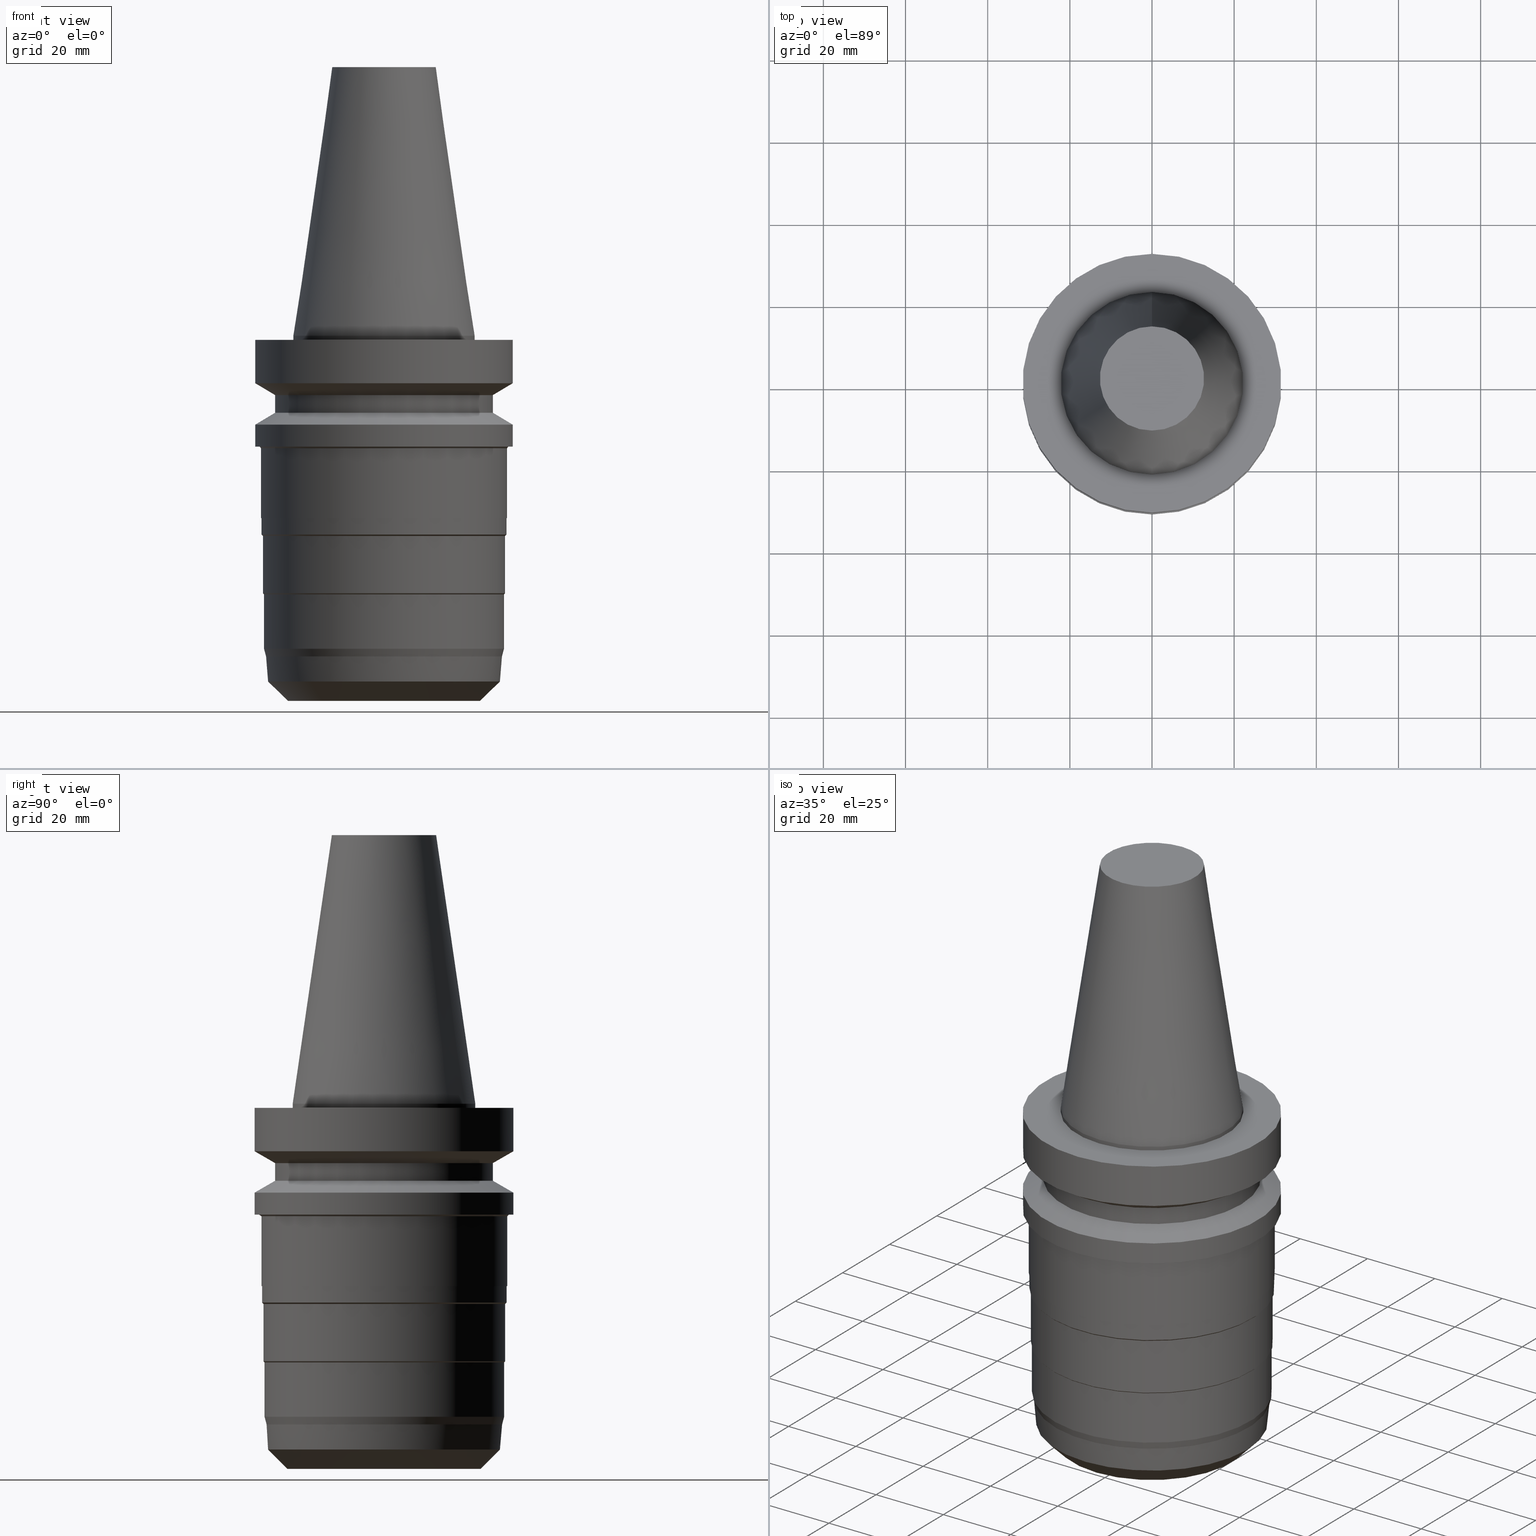
[diagram: canonical four-view strip — front | top / right | iso, engineering-drawing reading convention]
A machine part, canonical four-view strip (front | top / right | iso — engineering-drawing reading convention). The complete STEP part file that produces these views, byte-faithful:
ISO-10303-21;
HEADER;
FILE_DESCRIPTION((''),'1');
FILE_NAME('V:/90_\X2\53D65F9730C730FC30BF\X0\/00_\X2\6DE18DEF30C730FC30BF\X0\/ALL/BBT-BKUS\X2\FF76FF80FF9BFF78FF9E752852A05DE556F3\X0\201801/BBT40-HMC-S/BBT40-HMC1.000S-3.5.stp','2018-02-07T04:10:37',(''),(''),'Spatial Interop R21 SP3','Kubotek KeyCreator 2011 V10.0.2 (22737)',' ');
FILE_SCHEMA(('automotive_design'));
ENDSEC;
DATA;
#1=MECHANICAL_DESIGN_GEOMETRIC_PRESENTATION_REPRESENTATION(' ',(#10,#11,#12,#13,#14,#15,#16,#17,#18,#19,#20,#21,#22,#23,#24,#25,#26,#27,#28,#29,#30,#31,#32,#33,#34,#35,#36,#37,#38,#39,#40,#41,#42,#43,#44,#45,#46,#47,#48,#49,#50,#51,#52,#53),#6);
#2=PRODUCT_DEFINITION_CONTEXT('',#54,'design');
#3=APPLICATION_PROTOCOL_DEFINITION('INTERNATIONAL STANDARD','automotive_design',1994,#54);
#4=PRODUCT_CATEGORY_RELATIONSHIP('NONE','NONE',#55,#56);
#5=SHAPE_DEFINITION_REPRESENTATION(#57,#58);
#6= (GEOMETRIC_REPRESENTATION_CONTEXT(3)GLOBAL_UNCERTAINTY_ASSIGNED_CONTEXT((#61))GLOBAL_UNIT_ASSIGNED_CONTEXT((#63,#64,#65))REPRESENTATION_CONTEXT('NONE','WORKSPACE'));
#10=STYLED_ITEM('',(#67,#68),#69);
#11=STYLED_ITEM('',(#70,#71),#72);
#12=STYLED_ITEM('',(#73),#74);
#13=STYLED_ITEM('',(#75,#76),#77);
#14=STYLED_ITEM('',(#78),#79);
#15=STYLED_ITEM('',(#80,#81),#82);
#16=STYLED_ITEM('',(#83),#84);
#17=STYLED_ITEM('',(#85,#86),#87);
#18=STYLED_ITEM('',(#88),#89);
#19=STYLED_ITEM('',(#90,#91),#92);
#20=STYLED_ITEM('',(#93,#94),#95);
#21=STYLED_ITEM('',(#96,#97),#98);
#22=STYLED_ITEM('',(#99,#100),#101);
#23=STYLED_ITEM('',(#102,#103),#104);
#24=STYLED_ITEM('',(#105),#106);
#25=STYLED_ITEM('',(#107),#108);
#26=STYLED_ITEM('',(#109),#110);
#27=STYLED_ITEM('',(#111,#112),#113);
#28=STYLED_ITEM('',(#114,#115),#116);
#29=STYLED_ITEM('',(#117,#118),#119);
#30=STYLED_ITEM('',(#120),#121);
#31=STYLED_ITEM('',(#122),#123);
#32=STYLED_ITEM('',(#124,#125),#126);
#33=STYLED_ITEM('',(#127,#128),#129);
#34=STYLED_ITEM('',(#130),#131);
#35=STYLED_ITEM('',(#132),#133);
#36=STYLED_ITEM('',(#134),#135);
#37=STYLED_ITEM('',(#136,#137),#138);
#38=STYLED_ITEM('',(#139,#140),#141);
#39=STYLED_ITEM('',(#142),#143);
#40=STYLED_ITEM('',(#144),#145);
#41=STYLED_ITEM('',(#146,#147),#148);
#42=STYLED_ITEM('',(#149),#150);
#43=STYLED_ITEM('',(#151),#152);
#44=STYLED_ITEM('',(#153),#154);
#45=STYLED_ITEM('',(#155),#156);
#46=STYLED_ITEM('',(#157,#158),#159);
#47=STYLED_ITEM('',(#160),#161);
#48=STYLED_ITEM('',(#162),#163);
#49=STYLED_ITEM('',(#164,#165),#166);
#50=STYLED_ITEM('',(#167,#168),#169);
#51=STYLED_ITEM('',(#170,#171),#172);
#52=STYLED_ITEM('',(#173),#174);
#53=STYLED_ITEM('',(#175,#176),#177);
#54=APPLICATION_CONTEXT(' ');
#55=PRODUCT_CATEGORY('part','NONE');
#56=PRODUCT_RELATED_PRODUCT_CATEGORY('detail',' ',(#178));
#57=PRODUCT_DEFINITION_SHAPE('NONE','NONE',#179);
#58=ADVANCED_BREP_SHAPE_REPRESENTATION('Unnamed[1]',(#119,#180),#6);
#61=UNCERTAINTY_MEASURE_WITH_UNIT(LENGTH_MEASURE(1.0E-006),#63,'','');
#63= (CONVERSION_BASED_UNIT('MILLIMETRE',#183)LENGTH_UNIT()NAMED_UNIT(#186));
#64= (NAMED_UNIT(#188)PLANE_ANGLE_UNIT()SI_UNIT($,.RADIAN.));
#65= (NAMED_UNIT(#188)SOLID_ANGLE_UNIT()SI_UNIT($,.STERADIAN.));
#67=PRESENTATION_STYLE_ASSIGNMENT((#194));
#68=PRESENTATION_STYLE_ASSIGNMENT((#195));
#69=ADVANCED_FACE('Unnamed[1]',(#196,#197),#198,.T.);
#70=PRESENTATION_STYLE_ASSIGNMENT((#199));
#71=PRESENTATION_STYLE_ASSIGNMENT((#200));
#72=ADVANCED_FACE('Unnamed[1]',(#201,#202),#203,.T.);
#73=PRESENTATION_STYLE_ASSIGNMENT((#204));
#74=EDGE_CURVE('Unnamed[1]',#205,#205,#206,.T.);
#75=PRESENTATION_STYLE_ASSIGNMENT((#207));
#76=PRESENTATION_STYLE_ASSIGNMENT((#208));
#77=ADVANCED_FACE('Unnamed[1]',(#209,#210),#211,.T.);
#78=PRESENTATION_STYLE_ASSIGNMENT((#212));
#79=EDGE_CURVE('Unnamed[1]',#213,#213,#214,.T.);
#80=PRESENTATION_STYLE_ASSIGNMENT((#215));
#81=PRESENTATION_STYLE_ASSIGNMENT((#216));
#82=ADVANCED_FACE('Unnamed[1]',(#217,#218),#219,.T.);
#83=PRESENTATION_STYLE_ASSIGNMENT((#220));
#84=EDGE_CURVE('Unnamed[1]',#221,#221,#222,.T.);
#85=PRESENTATION_STYLE_ASSIGNMENT((#223));
#86=PRESENTATION_STYLE_ASSIGNMENT((#224));
#87=ADVANCED_FACE('Unnamed[1]',(#225,#226),#227,.T.);
#88=PRESENTATION_STYLE_ASSIGNMENT((#228));
#89=EDGE_CURVE('Unnamed[1]',#229,#229,#230,.T.);
#90=PRESENTATION_STYLE_ASSIGNMENT((#231));
#91=PRESENTATION_STYLE_ASSIGNMENT((#232));
#92=ADVANCED_FACE('Unnamed[1]',(#233,#234),#235,.T.);
#93=PRESENTATION_STYLE_ASSIGNMENT((#236));
#94=PRESENTATION_STYLE_ASSIGNMENT((#237));
#95=ADVANCED_FACE('Unnamed[1]',(#238,#239),#240,.T.);
#96=PRESENTATION_STYLE_ASSIGNMENT((#241));
#97=PRESENTATION_STYLE_ASSIGNMENT((#242));
#98=ADVANCED_FACE('Unnamed[1]',(#243,#244),#245,.T.);
#99=PRESENTATION_STYLE_ASSIGNMENT((#246));
#100=PRESENTATION_STYLE_ASSIGNMENT((#247));
#101=ADVANCED_FACE('Unnamed[1]',(#248,#249),#250,.T.);
#102=PRESENTATION_STYLE_ASSIGNMENT((#251));
#103=PRESENTATION_STYLE_ASSIGNMENT((#252));
#104=ADVANCED_FACE('Unnamed[1]',(#253),#254,.T.);
#105=PRESENTATION_STYLE_ASSIGNMENT((#255));
#106=EDGE_CURVE('Unnamed[1]',#256,#256,#257,.T.);
#107=PRESENTATION_STYLE_ASSIGNMENT((#258));
#108=EDGE_CURVE('Unnamed[1]',#259,#259,#260,.T.);
#109=PRESENTATION_STYLE_ASSIGNMENT((#261));
#110=EDGE_CURVE('Unnamed[1]',#262,#262,#263,.T.);
#111=PRESENTATION_STYLE_ASSIGNMENT((#264));
#112=PRESENTATION_STYLE_ASSIGNMENT((#265));
#113=ADVANCED_FACE('Unnamed[1]',(#266,#267),#268,.T.);
#114=PRESENTATION_STYLE_ASSIGNMENT((#269));
#115=PRESENTATION_STYLE_ASSIGNMENT((#270));
#116=ADVANCED_FACE('Unnamed[1]',(#271,#272),#273,.T.);
#117=PRESENTATION_STYLE_ASSIGNMENT((#274));
#118=PRESENTATION_STYLE_ASSIGNMENT((#275));
#119=MANIFOLD_SOLID_BREP('Unnamed[1]',#276);
#120=PRESENTATION_STYLE_ASSIGNMENT((#277));
#121=EDGE_CURVE('Unnamed[1]',#278,#278,#279,.T.);
#122=PRESENTATION_STYLE_ASSIGNMENT((#280));
#123=EDGE_CURVE('Unnamed[1]',#281,#281,#282,.T.);
#124=PRESENTATION_STYLE_ASSIGNMENT((#283));
#125=PRESENTATION_STYLE_ASSIGNMENT((#284));
#126=ADVANCED_FACE('Unnamed[1]',(#285,#286),#287,.T.);
#127=PRESENTATION_STYLE_ASSIGNMENT((#288));
#128=PRESENTATION_STYLE_ASSIGNMENT((#289));
#129=ADVANCED_FACE('Unnamed[1]',(#290,#291),#292,.T.);
#130=PRESENTATION_STYLE_ASSIGNMENT((#293));
#131=EDGE_CURVE('Unnamed[1]',#294,#294,#295,.T.);
#132=PRESENTATION_STYLE_ASSIGNMENT((#296));
#133=EDGE_CURVE('Unnamed[1]',#297,#297,#298,.T.);
#134=PRESENTATION_STYLE_ASSIGNMENT((#299));
#135=EDGE_CURVE('Unnamed[1]',#300,#300,#301,.T.);
#136=PRESENTATION_STYLE_ASSIGNMENT((#302));
#137=PRESENTATION_STYLE_ASSIGNMENT((#303));
#138=ADVANCED_FACE('Unnamed[1]',(#304,#305),#306,.T.);
#139=PRESENTATION_STYLE_ASSIGNMENT((#307));
#140=PRESENTATION_STYLE_ASSIGNMENT((#308));
#141=ADVANCED_FACE('Unnamed[1]',(#309,#310),#311,.T.);
#142=PRESENTATION_STYLE_ASSIGNMENT((#312));
#143=EDGE_CURVE('Unnamed[1]',#313,#313,#314,.T.);
#144=PRESENTATION_STYLE_ASSIGNMENT((#315));
#145=EDGE_CURVE('Unnamed[1]',#316,#316,#317,.T.);
#146=PRESENTATION_STYLE_ASSIGNMENT((#318));
#147=PRESENTATION_STYLE_ASSIGNMENT((#319));
#148=ADVANCED_FACE('Unnamed[1]',(#320),#321,.T.);
#149=PRESENTATION_STYLE_ASSIGNMENT((#322));
#150=EDGE_CURVE('Unnamed[1]',#323,#323,#324,.T.);
#151=PRESENTATION_STYLE_ASSIGNMENT((#325));
#152=EDGE_CURVE('Unnamed[1]',#326,#326,#327,.T.);
#153=PRESENTATION_STYLE_ASSIGNMENT((#328));
#154=EDGE_CURVE('Unnamed[1]',#329,#329,#330,.T.);
#155=PRESENTATION_STYLE_ASSIGNMENT((#331));
#156=EDGE_CURVE('Unnamed[1]',#332,#332,#333,.T.);
#157=PRESENTATION_STYLE_ASSIGNMENT((#334));
#158=PRESENTATION_STYLE_ASSIGNMENT((#335));
#159=ADVANCED_FACE('Unnamed[1]',(#336,#337),#338,.T.);
#160=PRESENTATION_STYLE_ASSIGNMENT((#339));
#161=EDGE_CURVE('Unnamed[1]',#340,#340,#341,.T.);
#162=PRESENTATION_STYLE_ASSIGNMENT((#342));
#163=EDGE_CURVE('Unnamed[1]',#343,#343,#344,.T.);
#164=PRESENTATION_STYLE_ASSIGNMENT((#345));
#165=PRESENTATION_STYLE_ASSIGNMENT((#346));
#166=ADVANCED_FACE('Unnamed[1]',(#347,#348),#349,.T.);
#167=PRESENTATION_STYLE_ASSIGNMENT((#350));
#168=PRESENTATION_STYLE_ASSIGNMENT((#351));
#169=ADVANCED_FACE('Unnamed[1]',(#352,#353),#354,.T.);
#170=PRESENTATION_STYLE_ASSIGNMENT((#355));
#171=PRESENTATION_STYLE_ASSIGNMENT((#356));
#172=ADVANCED_FACE('Unnamed[1]',(#357,#358),#359,.T.);
#173=PRESENTATION_STYLE_ASSIGNMENT((#360));
#174=EDGE_CURVE('Unnamed[1]',#361,#361,#362,.T.);
#175=PRESENTATION_STYLE_ASSIGNMENT((#363));
#176=PRESENTATION_STYLE_ASSIGNMENT((#364));
#177=ADVANCED_FACE('Unnamed[1]',(#365,#366),#367,.T.);
#178=PRODUCT('Unnamed[1]','Unnamed[1]','PART-Unnamed[1]-DESC',(#368));
#179=PRODUCT_DEFINITION('NONE','NONE',#369,#2);
#180=AXIS2_PLACEMENT_3D('',#370,#371,#372);
#183=LENGTH_MEASURE_WITH_UNIT(LENGTH_MEASURE(1.0),#373);
#186=DIMENSIONAL_EXPONENTS(1.0,0.0,0.0,0.0,0.0,0.0,0.0);
#188=DIMENSIONAL_EXPONENTS(0.0,0.0,0.0,0.0,0.0,0.0,0.0);
#194=SURFACE_STYLE_USAGE(.BOTH.,#374);
#195=CURVE_STYLE('',#375,POSITIVE_LENGTH_MEASURE(1000.0),#376);
#196=FACE_BOUND('',#377,.T.);
#197=FACE_BOUND('',#378,.T.);
#198=CYLINDRICAL_SURFACE('',#379,31.5000000000005);
#199=SURFACE_STYLE_USAGE(.BOTH.,#380);
#200=CURVE_STYLE('',#381,POSITIVE_LENGTH_MEASURE(1000.0),#382);
#201=FACE_BOUND('',#383,.T.);
#202=FACE_OUTER_BOUND('',#384,.T.);
#203=PLANE('',#385);
#204=CURVE_STYLE('',#386,POSITIVE_LENGTH_MEASURE(1000.0),#387);
#205=VERTEX_POINT('',#388);
#206=CIRCLE('',#389,26.4999999999995);
#207=SURFACE_STYLE_USAGE(.BOTH.,#390);
#208=CURVE_STYLE('',#391,POSITIVE_LENGTH_MEASURE(1000.0),#392);
#209=FACE_BOUND('',#393,.T.);
#210=FACE_BOUND('',#394,.T.);
#211=CONICAL_SURFACE('',#395,17.4562500000001,0.144812498238936);
#212=CURVE_STYLE('',#396,POSITIVE_LENGTH_MEASURE(1000.0),#397);
#213=VERTEX_POINT('',#398);
#214=CIRCLE('',#399,31.5000000000007);
#215=SURFACE_STYLE_USAGE(.BOTH.,#400);
#216=CURVE_STYLE('',#401,POSITIVE_LENGTH_MEASURE(1000.0),#402);
#217=FACE_BOUND('',#403,.T.);
#218=FACE_BOUND('',#404,.T.);
#219=CYLINDRICAL_SURFACE('',#405,29.85);
#220=CURVE_STYLE('',#406,POSITIVE_LENGTH_MEASURE(1000.0),#407);
#221=VERTEX_POINT('',#408);
#222=CIRCLE('',#409,30.0000000000004);
#223=SURFACE_STYLE_USAGE(.BOTH.,#410);
#224=CURVE_STYLE('',#411,POSITIVE_LENGTH_MEASURE(1000.0),#412);
#225=FACE_BOUND('',#413,.T.);
#226=FACE_BOUND('',#414,.T.);
#227=CONICAL_SURFACE('',#415,29.0000000000004,1.04719755119651);
#228=CURVE_STYLE('',#416,POSITIVE_LENGTH_MEASURE(1000.0),#417);
#229=VERTEX_POINT('',#418);
#230=CIRCLE('',#419,29.5);
#231=SURFACE_STYLE_USAGE(.BOTH.,#420);
#232=CURVE_STYLE('',#421,POSITIVE_LENGTH_MEASURE(1000.0),#422);
#233=FACE_BOUND('',#423,.T.);
#234=FACE_BOUND('',#424,.T.);
#235=CYLINDRICAL_SURFACE('',#425,31.5);
#236=SURFACE_STYLE_USAGE(.BOTH.,#426);
#237=CURVE_STYLE('',#427,POSITIVE_LENGTH_MEASURE(1000.0),#428);
#238=FACE_BOUND('',#429,.T.);
#239=FACE_BOUND('',#430,.T.);
#240=CONICAL_SURFACE('',#431,30.2,0.785398163397501);
#241=SURFACE_STYLE_USAGE(.BOTH.,#432);
#242=CURVE_STYLE('',#433,POSITIVE_LENGTH_MEASURE(1000.0),#434);
#243=FACE_BOUND('',#435,.T.);
#244=FACE_BOUND('',#436,.T.);
#245=CONICAL_SURFACE('',#437,28.4823132001958,0.0872664632443561);
#246=SURFACE_STYLE_USAGE(.BOTH.,#438);
#247=CURVE_STYLE('',#439,POSITIVE_LENGTH_MEASURE(1000.0),#440);
#248=FACE_BOUND('',#441,.T.);
#249=FACE_BOUND('',#442,.T.);
#250=CONICAL_SURFACE('',#443,25.8573132001958,0.785398163397444);
#251=SURFACE_STYLE_USAGE(.BOTH.,#444);
#252=CURVE_STYLE('',#445,POSITIVE_LENGTH_MEASURE(1000.0),#446);
#253=FACE_OUTER_BOUND('',#447,.T.);
#254=PLANE('',#448);
#255=CURVE_STYLE('',#449,POSITIVE_LENGTH_MEASURE(1000.0),#450);
#256=VERTEX_POINT('',#451);
#257=CIRCLE('',#452,30.4);
#258=CURVE_STYLE('',#453,POSITIVE_LENGTH_MEASURE(1000.0),#454);
#259=VERTEX_POINT('',#455);
#260=CIRCLE('',#456,29.25);
#261=CURVE_STYLE('',#457,POSITIVE_LENGTH_MEASURE(1000.0),#458);
#262=VERTEX_POINT('',#459);
#263=CIRCLE('',#460,22.2250000000001);
#264=SURFACE_STYLE_USAGE(.BOTH.,#461);
#265=CURVE_STYLE('',#462,POSITIVE_LENGTH_MEASURE(1000.0),#463);
#266=FACE_BOUND('',#464,.T.);
#267=FACE_BOUND('',#465,.T.);
#268=CYLINDRICAL_SURFACE('',#466,29.5);
#269=SURFACE_STYLE_USAGE(.BOTH.,#467);
#270=CURVE_STYLE('',#468,POSITIVE_LENGTH_MEASURE(1000.0),#469);
#271=FACE_BOUND('',#470,.T.);
#272=FACE_BOUND('',#471,.T.);
#273=CYLINDRICAL_SURFACE('',#472,26.4999999999997);
#274=SURFACE_STYLE_USAGE(.BOTH.,#473);
#275=CURVE_STYLE('',#474,POSITIVE_LENGTH_MEASURE(1000.0),#475);
#276=CLOSED_SHELL('',(#148,#77,#126,#166,#92,#177,#116,#87,#69,#72,#95,#141,#138,#82,#169,#113,#129,#172,#159,#98,#101,#104));
#277=CURVE_STYLE('',#476,POSITIVE_LENGTH_MEASURE(1000.0),#477);
#278=VERTEX_POINT('',#478);
#279=CIRCLE('',#479,29.9999999999999);
#280=CURVE_STYLE('',#480,POSITIVE_LENGTH_MEASURE(1000.0),#481);
#281=VERTEX_POINT('',#482);
#282=CIRCLE('',#483,26.5);
#283=SURFACE_STYLE_USAGE(.BOTH.,#484);
#284=CURVE_STYLE('',#485,POSITIVE_LENGTH_MEASURE(1000.0),#486);
#285=FACE_BOUND('',#487,.T.);
#286=FACE_BOUND('',#488,.T.);
#287=CYLINDRICAL_SURFACE('',#489,22.2250000000001);
#288=SURFACE_STYLE_USAGE(.BOTH.,#490);
#289=CURVE_STYLE('',#491,POSITIVE_LENGTH_MEASURE(1000.0),#492);
#290=FACE_BOUND('',#493,.T.);
#291=FACE_BOUND('',#494,.T.);
#292=CONICAL_SURFACE('',#495,29.375,0.78539816339742);
#293=CURVE_STYLE('',#496,POSITIVE_LENGTH_MEASURE(1000.0),#497);
#294=VERTEX_POINT('',#498);
#295=CIRCLE('',#499,12.6875000000002);
#296=CURVE_STYLE('',#500,POSITIVE_LENGTH_MEASURE(1000.0),#501);
#297=VERTEX_POINT('',#502);
#298=CIRCLE('',#503,28.75);
#299=CURVE_STYLE('',#504,POSITIVE_LENGTH_MEASURE(1000.0),#505);
#300=VERTEX_POINT('',#506);
#301=CIRCLE('',#507,29.85);
#302=SURFACE_STYLE_USAGE(.BOTH.,#508);
#303=CURVE_STYLE('',#509,POSITIVE_LENGTH_MEASURE(1000.0),#510);
#304=FACE_BOUND('',#511,.T.);
#305=FACE_OUTER_BOUND('',#512,.T.);
#306=PLANE('',#513);
#307=SURFACE_STYLE_USAGE(.BOTH.,#514);
#308=CURVE_STYLE('',#515,POSITIVE_LENGTH_MEASURE(1000.0),#516);
#309=FACE_BOUND('',#517,.T.);
#310=FACE_BOUND('',#518,.T.);
#311=CYLINDRICAL_SURFACE('',#519,30.0000000000001);
#312=CURVE_STYLE('',#520,POSITIVE_LENGTH_MEASURE(1000.0),#521);
#313=VERTEX_POINT('',#522);
#314=CIRCLE('',#523,29.5);
#315=CURVE_STYLE('',#524,POSITIVE_LENGTH_MEASURE(1000.0),#525);
#316=VERTEX_POINT('',#526);
#317=CIRCLE('',#527,28.2146264003915);
#318=SURFACE_STYLE_USAGE(.BOTH.,#528);
#319=CURVE_STYLE('',#529,POSITIVE_LENGTH_MEASURE(1000.0),#530);
#320=FACE_OUTER_BOUND('',#531,.T.);
#321=PLANE('',#532);
#322=CURVE_STYLE('',#533,POSITIVE_LENGTH_MEASURE(1000.0),#534);
#323=VERTEX_POINT('',#535);
#324=CIRCLE('',#536,23.5);
#325=CURVE_STYLE('',#537,POSITIVE_LENGTH_MEASURE(1000.0),#538);
#326=VERTEX_POINT('',#539);
#327=CIRCLE('',#540,29.85);
#328=CURVE_STYLE('',#541,POSITIVE_LENGTH_MEASURE(1000.0),#542);
#329=VERTEX_POINT('',#543);
#330=CIRCLE('',#544,29.25);
#331=CURVE_STYLE('',#545,POSITIVE_LENGTH_MEASURE(1000.0),#546);
#332=VERTEX_POINT('',#547);
#333=CIRCLE('',#548,22.2250000000001);
#334=SURFACE_STYLE_USAGE(.BOTH.,#549);
#335=CURVE_STYLE('',#550,POSITIVE_LENGTH_MEASURE(1000.0),#551);
#336=FACE_BOUND('',#552,.T.);
#337=FACE_BOUND('',#553,.T.);
#338=CONICAL_SURFACE('',#554,29.0,0.261799388306166);
#339=CURVE_STYLE('',#555,POSITIVE_LENGTH_MEASURE(1000.0),#556);
#340=VERTEX_POINT('',#557);
#341=CIRCLE('',#558,31.4999999999997);
#342=CURVE_STYLE('',#559,POSITIVE_LENGTH_MEASURE(1000.0),#560);
#343=VERTEX_POINT('',#561);
#344=CIRCLE('',#562,31.5000000000004);
#345=SURFACE_STYLE_USAGE(.BOTH.,#563);
#346=CURVE_STYLE('',#564,POSITIVE_LENGTH_MEASURE(1000.0),#565);
#347=FACE_OUTER_BOUND('',#566,.T.);
#348=FACE_BOUND('',#567,.T.);
#349=PLANE('',#568);
#350=SURFACE_STYLE_USAGE(.BOTH.,#569);
#351=CURVE_STYLE('',#570,POSITIVE_LENGTH_MEASURE(1000.0),#571);
#352=FACE_BOUND('',#572,.T.);
#353=FACE_BOUND('',#573,.T.);
#354=CONICAL_SURFACE('',#574,29.675,0.785398163397448);
#355=SURFACE_STYLE_USAGE(.BOTH.,#575);
#356=CURVE_STYLE('',#576,POSITIVE_LENGTH_MEASURE(1000.0),#577);
#357=FACE_BOUND('',#578,.T.);
#358=FACE_BOUND('',#579,.T.);
#359=CYLINDRICAL_SURFACE('',#580,29.25);
#360=CURVE_STYLE('',#581,POSITIVE_LENGTH_MEASURE(1000.0),#582);
#361=VERTEX_POINT('',#583);
#362=CIRCLE('',#584,31.5000000000004);
#363=SURFACE_STYLE_USAGE(.BOTH.,#585);
#364=CURVE_STYLE('',#586,POSITIVE_LENGTH_MEASURE(1000.0),#587);
#365=FACE_BOUND('',#588,.T.);
#366=FACE_BOUND('',#589,.T.);
#367=CONICAL_SURFACE('',#590,28.9999999999999,1.04719755119657);
#368=PRODUCT_CONTEXT('',#54,'mechanical');
#369=PRODUCT_DEFINITION_FORMATION_WITH_SPECIFIED_SOURCE(' ','NONE',#178,.NOT_KNOWN.);
#370=CARTESIAN_POINT('',(0.0,0.0,0.0));
#371=DIRECTION('',(0.0,0.0,1.0));
#372=DIRECTION('',(1.0,0.0,0.0));
#373= (NAMED_UNIT(#186)LENGTH_UNIT()SI_UNIT(.MILLI.,.METRE.));
#374=SURFACE_SIDE_STYLE('',(#592));
#375=DRAUGHTING_PRE_DEFINED_CURVE_FONT('continuous');
#376=COLOUR_RGB('',0.0,1.0,0.0);
#377=EDGE_LOOP('',(#593));
#378=EDGE_LOOP('',(#594));
#379=AXIS2_PLACEMENT_3D('',#595,#596,#597);
#380=SURFACE_SIDE_STYLE('',(#598));
#381=DRAUGHTING_PRE_DEFINED_CURVE_FONT('continuous');
#382=COLOUR_RGB('',0.0,1.0,0.0);
#383=EDGE_LOOP('',(#599));
#384=EDGE_LOOP('',(#600));
#385=AXIS2_PLACEMENT_3D('',#601,#602,#603);
#386=DRAUGHTING_PRE_DEFINED_CURVE_FONT('continuous');
#387=COLOUR_RGB('',0.0,1.0,0.0);
#388=CARTESIAN_POINT('',(8.8494551369045E-016,26.4999999999995,-14.4522569986152));
#389=AXIS2_PLACEMENT_3D('',#604,#605,#606);
#390=SURFACE_SIDE_STYLE('',(#607));
#391=DRAUGHTING_PRE_DEFINED_CURVE_FONT('continuous');
#392=COLOUR_RGB('',0.0,1.0,0.0);
#393=EDGE_LOOP('',(#608));
#394=EDGE_LOOP('',(#609));
#395=AXIS2_PLACEMENT_3D('',#610,#611,#612);
#396=DRAUGHTING_PRE_DEFINED_CURVE_FONT('continuous');
#397=COLOUR_RGB('',0.0,1.0,0.0);
#398=CARTESIAN_POINT('',(1.32473071268174E-015,31.5000000000007,-21.6344943473346));
#399=AXIS2_PLACEMENT_3D('',#613,#614,#615);
#400=SURFACE_SIDE_STYLE('',(#616));
#401=DRAUGHTING_PRE_DEFINED_CURVE_FONT('continuous');
#402=COLOUR_RGB('',0.0,1.0,0.0);
#403=EDGE_LOOP('',(#617));
#404=EDGE_LOOP('',(#618));
#405=AXIS2_PLACEMENT_3D('',#619,#620,#621);
#406=DRAUGHTING_PRE_DEFINED_CURVE_FONT('continuous');
#407=COLOUR_RGB('',0.0,1.0,0.0);
#408=CARTESIAN_POINT('',(2.71871589410711E-015,30.0000000000004,-44.3999999999997));
#409=AXIS2_PLACEMENT_3D('',#622,#623,#624);
#410=SURFACE_SIDE_STYLE('',(#625));
#411=DRAUGHTING_PRE_DEFINED_CURVE_FONT('continuous');
#412=COLOUR_RGB('',0.0,1.0,0.0);
#413=EDGE_LOOP('',(#626));
#414=EDGE_LOOP('',(#627));
#415=AXIS2_PLACEMENT_3D('',#628,#629,#630);
#416=DRAUGHTING_PRE_DEFINED_CURVE_FONT('continuous');
#417=COLOUR_RGB('',0.0,1.0,0.0);
#418=CARTESIAN_POINT('',(2.98507657292167E-015,29.5,-48.75));
#419=AXIS2_PLACEMENT_3D('',#631,#632,#633);
#420=SURFACE_SIDE_STYLE('',(#634));
#421=DRAUGHTING_PRE_DEFINED_CURVE_FONT('continuous');
#422=COLOUR_RGB('',0.0,1.0,0.0);
#423=EDGE_LOOP('',(#635));
#424=EDGE_LOOP('',(#636));
#425=AXIS2_PLACEMENT_3D('',#637,#638,#639);
#426=SURFACE_SIDE_STYLE('',(#640));
#427=DRAUGHTING_PRE_DEFINED_CURVE_FONT('continuous');
#428=COLOUR_RGB('',0.0,1.0,0.0);
#429=EDGE_LOOP('',(#641));
#430=EDGE_LOOP('',(#642));
#431=AXIS2_PLACEMENT_3D('',#643,#644,#645);
#432=SURFACE_SIDE_STYLE('',(#646));
#433=DRAUGHTING_PRE_DEFINED_CURVE_FONT('continuous');
#434=COLOUR_RGB('',0.0,1.0,0.0);
#435=EDGE_LOOP('',(#647));
#436=EDGE_LOOP('',(#648));
#437=AXIS2_PLACEMENT_3D('',#649,#650,#651);
#438=SURFACE_SIDE_STYLE('',(#652));
#439=DRAUGHTING_PRE_DEFINED_CURVE_FONT('continuous');
#440=COLOUR_RGB('',0.0,1.0,0.0);
#441=EDGE_LOOP('',(#653));
#442=EDGE_LOOP('',(#654));
#443=AXIS2_PLACEMENT_3D('',#655,#656,#657);
#444=SURFACE_SIDE_STYLE('',(#658));
#445=DRAUGHTING_PRE_DEFINED_CURVE_FONT('continuous');
#446=COLOUR_RGB('',0.0,1.0,0.0);
#447=EDGE_LOOP('',(#659));
#448=AXIS2_PLACEMENT_3D('',#660,#661,#662);
#449=DRAUGHTING_PRE_DEFINED_CURVE_FONT('continuous');
#450=COLOUR_RGB('',0.0,1.0,0.0);
#451=CARTESIAN_POINT('',(1.65327317884891E-015,30.4,-26.9999999999998));
#452=AXIS2_PLACEMENT_3D('',#663,#664,#665);
#453=DRAUGHTING_PRE_DEFINED_CURVE_FONT('continuous');
#454=COLOUR_RGB('',0.0,1.0,0.0);
#455=CARTESIAN_POINT('',(4.66590430475142E-015,29.25,-76.2));
#456=AXIS2_PLACEMENT_3D('',#666,#667,#668);
#457=DRAUGHTING_PRE_DEFINED_CURVE_FONT('continuous');
#458=COLOUR_RGB('',0.0,1.0,0.0);
#459=CARTESIAN_POINT('',(6.12323399573622E-017,22.2250000000001,-0.999999999999912));
#460=AXIS2_PLACEMENT_3D('',#669,#670,#671);
#461=SURFACE_SIDE_STYLE('',(#672));
#462=DRAUGHTING_PRE_DEFINED_CURVE_FONT('continuous');
#463=COLOUR_RGB('',0.0,1.0,0.0);
#464=EDGE_LOOP('',(#673));
#465=EDGE_LOOP('',(#674));
#466=AXIS2_PLACEMENT_3D('',#675,#676,#677);
#467=SURFACE_SIDE_STYLE('',(#678));
#468=DRAUGHTING_PRE_DEFINED_CURVE_FONT('continuous');
#469=COLOUR_RGB('',0.0,1.0,0.0);
#470=EDGE_LOOP('',(#679));
#471=EDGE_LOOP('',(#680));
#472=AXIS2_PLACEMENT_3D('',#681,#682,#683);
#473=SURFACE_SIDE_STYLE('',(#684));
#474=DRAUGHTING_PRE_DEFINED_CURVE_FONT('continuous');
#475=COLOUR_RGB('',0.0,1.0,0.0);
#476=DRAUGHTING_PRE_DEFINED_CURVE_FONT('continuous');
#477=COLOUR_RGB('',0.0,1.0,0.0);
#478=CARTESIAN_POINT('',(1.67776611483187E-015,29.9999999999999,-27.3999999999999));
#479=AXIS2_PLACEMENT_3D('',#685,#686,#687);
#480=DRAUGHTING_PRE_DEFINED_CURVE_FONT('continuous');
#481=COLOUR_RGB('',0.0,1.0,0.0);
#482=CARTESIAN_POINT('',(1.1479681728942E-015,26.5,-18.7477430013855));
#483=AXIS2_PLACEMENT_3D('',#688,#689,#690);
#484=SURFACE_SIDE_STYLE('',(#691));
#485=DRAUGHTING_PRE_DEFINED_CURVE_FONT('continuous');
#486=COLOUR_RGB('',0.0,1.0,0.0);
#487=EDGE_LOOP('',(#692));
#488=EDGE_LOOP('',(#693));
#489=AXIS2_PLACEMENT_3D('',#694,#695,#696);
#490=SURFACE_SIDE_STYLE('',(#697));
#491=DRAUGHTING_PRE_DEFINED_CURVE_FONT('continuous');
#492=COLOUR_RGB('',0.0,1.0,0.0);
#493=EDGE_LOOP('',(#698));
#494=EDGE_LOOP('',(#699));
#495=AXIS2_PLACEMENT_3D('',#700,#701,#702);
#496=DRAUGHTING_PRE_DEFINED_CURVE_FONT('continuous');
#497=COLOUR_RGB('',0.0,1.0,0.0);
#498=CARTESIAN_POINT('',(-4.00459503321185E-015,12.6875000000002,65.4000000000001));
#499=AXIS2_PLACEMENT_3D('',#703,#704,#705);
#500=DRAUGHTING_PRE_DEFINED_CURVE_FONT('continuous');
#501=COLOUR_RGB('',0.0,1.0,0.0);
#502=CARTESIAN_POINT('',(4.7801654064133E-015,28.75,-78.0660254));
#503=AXIS2_PLACEMENT_3D('',#706,#707,#708);
#504=DRAUGHTING_PRE_DEFINED_CURVE_FONT('continuous');
#505=COLOUR_RGB('',0.0,1.0,0.0);
#506=CARTESIAN_POINT('',(2.7187158941071E-015,29.85,-44.3999999999997));
#507=AXIS2_PLACEMENT_3D('',#709,#710,#711);
#508=SURFACE_SIDE_STYLE('',(#712));
#509=DRAUGHTING_PRE_DEFINED_CURVE_FONT('continuous');
#510=COLOUR_RGB('',0.0,1.0,0.0);
#511=EDGE_LOOP('',(#713));
#512=EDGE_LOOP('',(#714));
#513=AXIS2_PLACEMENT_3D('',#715,#716,#717);
#514=SURFACE_SIDE_STYLE('',(#718));
#515=DRAUGHTING_PRE_DEFINED_CURVE_FONT('continuous');
#516=COLOUR_RGB('',0.0,1.0,0.0);
#517=EDGE_LOOP('',(#719));
#518=EDGE_LOOP('',(#720));
#519=AXIS2_PLACEMENT_3D('',#721,#722,#723);
#520=DRAUGHTING_PRE_DEFINED_CURVE_FONT('continuous');
#521=COLOUR_RGB('',0.0,1.0,0.0);
#522=CARTESIAN_POINT('',(3.83926771532695E-015,29.5,-62.7));
#523=AXIS2_PLACEMENT_3D('',#724,#725,#726);
#524=DRAUGHTING_PRE_DEFINED_CURVE_FONT('continuous');
#525=COLOUR_RGB('',0.0,1.0,0.0);
#526=CARTESIAN_POINT('',(5.15486741568923E-015,28.2146264003915,-84.1853735996085));
#527=AXIS2_PLACEMENT_3D('',#727,#728,#729);
#528=SURFACE_SIDE_STYLE('',(#730));
#529=DRAUGHTING_PRE_DEFINED_CURVE_FONT('continuous');
#530=COLOUR_RGB('',0.0,1.0,0.0);
#531=EDGE_LOOP('',(#731));
#532=AXIS2_PLACEMENT_3D('',#732,#733,#734);
#533=DRAUGHTING_PRE_DEFINED_CURVE_FONT('continuous');
#534=COLOUR_RGB('',0.0,1.0,0.0);
#535=CARTESIAN_POINT('',(5.44355502220999E-015,23.5,-88.9));
#536=AXIS2_PLACEMENT_3D('',#735,#736,#737);
#537=DRAUGHTING_PRE_DEFINED_CURVE_FONT('continuous');
#538=COLOUR_RGB('',0.0,1.0,0.0);
#539=CARTESIAN_POINT('',(2.96364525393659E-015,29.85,-48.4));
#540=AXIS2_PLACEMENT_3D('',#738,#739,#740);
#541=DRAUGHTING_PRE_DEFINED_CURVE_FONT('continuous');
#542=COLOUR_RGB('',0.0,1.0,0.0);
#543=CARTESIAN_POINT('',(3.85457580031629E-015,29.25,-62.95));
#544=AXIS2_PLACEMENT_3D('',#741,#742,#743);
#545=DRAUGHTING_PRE_DEFINED_CURVE_FONT('continuous');
#546=COLOUR_RGB('',0.0,1.0,0.0);
#547=CARTESIAN_POINT('',(1.71319921032766E-029,22.2250000000001,-2.8153873565375E-013));
#548=AXIS2_PLACEMENT_3D('',#744,#745,#746);
#549=SURFACE_SIDE_STYLE('',(#747));
#550=DRAUGHTING_PRE_DEFINED_CURVE_FONT('continuous');
#551=COLOUR_RGB('',0.0,1.0,0.0);
#552=EDGE_LOOP('',(#748));
#553=EDGE_LOOP('',(#749));
#554=AXIS2_PLACEMENT_3D('',#750,#751,#752);
#555=DRAUGHTING_PRE_DEFINED_CURVE_FONT('continuous');
#556=COLOUR_RGB('',0.0,1.0,0.0);
#557=CARTESIAN_POINT('',(6.12323399573568E-017,31.4999999999997,-0.999999999999825));
#558=AXIS2_PLACEMENT_3D('',#753,#754,#755);
#559=DRAUGHTING_PRE_DEFINED_CURVE_FONT('continuous');
#560=COLOUR_RGB('',0.0,1.0,0.0);
#561=CARTESIAN_POINT('',(1.65327317884891E-015,31.5000000000004,-26.9999999999998));
#562=AXIS2_PLACEMENT_3D('',#756,#757,#758);
#563=SURFACE_SIDE_STYLE('',(#759));
#564=DRAUGHTING_PRE_DEFINED_CURVE_FONT('continuous');
#565=COLOUR_RGB('',0.0,1.0,0.0);
#566=EDGE_LOOP('',(#760));
#567=EDGE_LOOP('',(#761));
#568=AXIS2_PLACEMENT_3D('',#762,#763,#764);
#569=SURFACE_SIDE_STYLE('',(#765));
#570=DRAUGHTING_PRE_DEFINED_CURVE_FONT('continuous');
#571=COLOUR_RGB('',0.0,1.0,0.0);
#572=EDGE_LOOP('',(#766));
#573=EDGE_LOOP('',(#767));
#574=AXIS2_PLACEMENT_3D('',#768,#769,#770);
#575=SURFACE_SIDE_STYLE('',(#771));
#576=DRAUGHTING_PRE_DEFINED_CURVE_FONT('continuous');
#577=COLOUR_RGB('',0.0,1.0,0.0);
#578=EDGE_LOOP('',(#772));
#579=EDGE_LOOP('',(#773));
#580=AXIS2_PLACEMENT_3D('',#774,#775,#776);
#581=DRAUGHTING_PRE_DEFINED_CURVE_FONT('continuous');
#582=COLOUR_RGB('',0.0,1.0,0.0);
#583=CARTESIAN_POINT('',(7.08182973902924E-016,31.5000000000004,-11.5655056526664));
#584=AXIS2_PLACEMENT_3D('',#777,#778,#779);
#585=SURFACE_SIDE_STYLE('',(#780));
#586=DRAUGHTING_PRE_DEFINED_CURVE_FONT('continuous');
#587=COLOUR_RGB('',0.0,1.0,0.0);
#588=EDGE_LOOP('',(#781));
#589=EDGE_LOOP('',(#782));
#590=AXIS2_PLACEMENT_3D('',#783,#784,#785);
#592=SURFACE_STYLE_FILL_AREA(#786);
#593=ORIENTED_EDGE('',*,*,#163,.F.);
#594=ORIENTED_EDGE('',*,*,#79,.T.);
#595=CARTESIAN_POINT('',(1.48900194576533E-015,2.97800389153066E-015,-24.3172471736672));
#596=DIRECTION('',(6.12323399573677E-017,1.22464679914768E-016,-1.0));
#597=DIRECTION('',(-1.23259516440781E-032,1.0,1.22464679914768E-016));
#598=SURFACE_STYLE_FILL_AREA(#787);
#599=ORIENTED_EDGE('',*,*,#106,.F.);
#600=ORIENTED_EDGE('',*,*,#163,.T.);
#601=CARTESIAN_POINT('',(1.65327317884891E-015,30.9500000000002,-26.9999999999998));
#602=DIRECTION('',(6.12323399573677E-017,9.81168380391312E-015,-1.0));
#603=DIRECTION('',(-6.05619510966175E-031,1.0,9.81168380391312E-015));
#604=CARTESIAN_POINT('',(8.8494551369045E-016,1.7698910273809E-015,-14.4522569986152));
#605=DIRECTION('',(6.12323399573677E-017,1.22464679914706E-016,-1.0));
#606=DIRECTION('',(-1.23259516440786E-032,1.0,1.22464679914706E-016));
#607=SURFACE_STYLE_FILL_AREA(#788);
#608=ORIENTED_EDGE('',*,*,#156,.F.);
#609=ORIENTED_EDGE('',*,*,#131,.T.);
#610=CARTESIAN_POINT('',(-2.00229751660592E-015,-4.00459503321183E-015,32.6999999999999));
#611=DIRECTION('',(6.12323399573677E-017,1.22464679914734E-016,-1.0));
#612=DIRECTION('',(-1.23259516440803E-032,1.0,1.22464679914734E-016));
#613=CARTESIAN_POINT('',(1.32473071268174E-015,2.64946142536349E-015,-21.6344943473346));
#614=DIRECTION('',(6.12323399573677E-017,1.22464679914767E-016,-1.0));
#615=DIRECTION('',(-1.2325951644078E-032,1.0,1.22464679914767E-016));
#616=SURFACE_STYLE_FILL_AREA(#789);
#617=ORIENTED_EDGE('',*,*,#152,.F.);
#618=ORIENTED_EDGE('',*,*,#135,.T.);
#619=CARTESIAN_POINT('',(2.84118057402185E-015,5.6823611480437E-015,-46.3999999999998));
#620=DIRECTION('',(6.12323399573677E-017,1.22464679914685E-016,-1.0));
#621=DIRECTION('',(-1.23259516440807E-032,1.0,1.22464679914685E-016));
#622=CARTESIAN_POINT('',(2.71871589410711E-015,5.43743178821421E-015,-44.3999999999997));
#623=DIRECTION('',(6.12323399573677E-017,1.22464679914692E-016,-1.0));
#624=DIRECTION('',(-1.23259516440782E-032,1.0,1.22464679914692E-016));
#625=SURFACE_STYLE_FILL_AREA(#790);
#626=ORIENTED_EDGE('',*,*,#79,.F.);
#627=ORIENTED_EDGE('',*,*,#123,.T.);
#628=CARTESIAN_POINT('',(1.23634944278797E-015,2.47269888557594E-015,-20.1911186743601));
#629=DIRECTION('',(6.12323399573676E-017,1.2246467991471E-016,-1.0));
#630=DIRECTION('',(-1.23259516440782E-032,1.0,1.2246467991471E-016));
#631=CARTESIAN_POINT('',(2.98507657292167E-015,5.97015314584335E-015,-48.75));
#632=DIRECTION('',(6.12323399573677E-017,1.22464679914757E-016,-1.0));
#633=DIRECTION('',(-1.23259516440783E-032,1.0,1.22464679914757E-016));
#634=SURFACE_STYLE_FILL_AREA(#791);
#635=ORIENTED_EDGE('',*,*,#174,.F.);
#636=ORIENTED_EDGE('',*,*,#161,.T.);
#637=CARTESIAN_POINT('',(3.84707656930141E-016,7.69415313860281E-016,-6.28275282633309));
#638=DIRECTION('',(6.12323399573676E-017,1.2246467991477E-016,-1.0));
#639=DIRECTION('',(-1.23259516440783E-032,1.0,1.2246467991477E-016));
#640=SURFACE_STYLE_FILL_AREA(#792);
#641=ORIENTED_EDGE('',*,*,#121,.F.);
#642=ORIENTED_EDGE('',*,*,#106,.T.);
#643=CARTESIAN_POINT('',(1.66551964684039E-015,3.33103929368078E-015,-27.1999999999998));
#644=DIRECTION('',(-6.12323399573677E-017,-1.22464679914775E-016,1.0));
#645=DIRECTION('',(-1.23259516440771E-032,1.0,1.22464679914775E-016));
#646=SURFACE_STYLE_FILL_AREA(#793);
#647=ORIENTED_EDGE('',*,*,#145,.F.);
#648=ORIENTED_EDGE('',*,*,#133,.T.);
#649=CARTESIAN_POINT('',(4.96751641105126E-015,9.93503282210253E-015,-81.1256994998042));
#650=DIRECTION('',(-6.12323399573677E-017,-1.22464679914756E-016,1.0));
#651=DIRECTION('',(-1.23259516440763E-032,1.0,1.22464679914756E-016));
#652=SURFACE_STYLE_FILL_AREA(#794);
#653=ORIENTED_EDGE('',*,*,#150,.F.);
#654=ORIENTED_EDGE('',*,*,#145,.T.);
#655=CARTESIAN_POINT('',(5.29921121894961E-015,1.05984224378992E-014,-86.5426867998042));
#656=DIRECTION('',(-6.12323399573677E-017,-1.22464679914723E-016,1.0));
#657=DIRECTION('',(-1.23259516440796E-032,1.0,1.22464679914723E-016));
#658=SURFACE_STYLE_FILL_AREA(#795);
#659=ORIENTED_EDGE('',*,*,#150,.T.);
#660=CARTESIAN_POINT('',(5.44355502220999E-015,11.75,-88.9));
#661=DIRECTION('',(6.12323399573677E-017,1.22464679914735E-016,-1.0));
#662=DIRECTION('',(-1.23259516440783E-032,1.0,1.22464679914735E-016));
#663=CARTESIAN_POINT('',(1.65327317884891E-015,3.30654635769783E-015,-26.9999999999998));
#664=DIRECTION('',(6.12323399573677E-017,1.2246467991475E-016,-1.0));
#665=DIRECTION('',(-1.23259516440759E-032,1.0,1.2246467991475E-016));
#666=CARTESIAN_POINT('',(4.66590430475142E-015,9.33180860950283E-015,-76.2));
#667=DIRECTION('',(6.12323399573677E-017,1.22464679914762E-016,-1.0));
#668=DIRECTION('',(-1.23259516440783E-032,1.0,1.22464679914762E-016));
#669=CARTESIAN_POINT('',(6.12323399573624E-017,1.22464679914725E-016,-0.999999999999915));
#670=DIRECTION('',(6.12323399573677E-017,1.22464679914758E-016,-1.0));
#671=DIRECTION('',(-1.23259516440775E-032,1.0,1.22464679914758E-016));
#672=SURFACE_STYLE_FILL_AREA(#796);
#673=ORIENTED_EDGE('',*,*,#143,.F.);
#674=ORIENTED_EDGE('',*,*,#89,.T.);
#675=CARTESIAN_POINT('',(3.41217214412431E-015,6.82434428824862E-015,-55.725));
#676=DIRECTION('',(6.12323399573677E-017,1.22464679914757E-016,-1.0));
#677=DIRECTION('',(-1.23259516440783E-032,1.0,1.22464679914757E-016));
#678=SURFACE_STYLE_FILL_AREA(#797);
#679=ORIENTED_EDGE('',*,*,#123,.F.);
#680=ORIENTED_EDGE('',*,*,#74,.T.);
#681=CARTESIAN_POINT('',(1.01645684329232E-015,2.03291368658465E-015,-16.6000000000004));
#682=DIRECTION('',(6.12323399573676E-017,1.22464679914765E-016,-1.0));
#683=DIRECTION('',(-1.23259516440784E-032,1.0,1.22464679914765E-016));
#684=SURFACE_STYLE_FILL_AREA(#798);
#685=CARTESIAN_POINT('',(1.67776611483187E-015,3.35553222966373E-015,-27.3999999999999));
#686=DIRECTION('',(6.12323399573677E-017,1.22464679914694E-016,-1.0));
#687=DIRECTION('',(-1.23259516440784E-032,1.0,1.22464679914694E-016));
#688=CARTESIAN_POINT('',(1.1479681728942E-015,2.29593634578839E-015,-18.7477430013855));
#689=DIRECTION('',(6.12323399573677E-017,1.22464679914764E-016,-1.0));
#690=DIRECTION('',(-1.23259516440783E-032,1.0,1.22464679914764E-016));
#691=SURFACE_STYLE_FILL_AREA(#799);
#692=ORIENTED_EDGE('',*,*,#110,.F.);
#693=ORIENTED_EDGE('',*,*,#156,.T.);
#694=CARTESIAN_POINT('',(3.06161699786899E-017,6.12323399573798E-017,-0.500000000000099));
#695=DIRECTION('',(6.12323399573677E-017,1.22464679914758E-016,-1.0));
#696=DIRECTION('',(-1.23259516440775E-032,1.0,1.22464679914758E-016));
#697=SURFACE_STYLE_FILL_AREA(#800);
#698=ORIENTED_EDGE('',*,*,#154,.F.);
#699=ORIENTED_EDGE('',*,*,#143,.T.);
#700=CARTESIAN_POINT('',(3.84692175782162E-015,7.69384351564324E-015,-62.825));
#701=DIRECTION('',(-6.12323399573677E-017,-1.22464679914732E-016,1.0));
#702=DIRECTION('',(-1.23259516440783E-032,1.0,1.22464679914732E-016));
#703=CARTESIAN_POINT('',(-4.00459503321185E-015,-8.0091900664237E-015,65.4000000000001));
#704=DIRECTION('',(6.12323399573677E-017,1.22464679914757E-016,-1.0));
#705=DIRECTION('',(-1.23259516440781E-032,1.0,1.22464679914757E-016));
#706=CARTESIAN_POINT('',(4.7801654064133E-015,9.5603308128266E-015,-78.0660254));
#707=DIRECTION('',(6.12323399573677E-017,1.22464679914716E-016,-1.0));
#708=DIRECTION('',(-1.23259516440783E-032,1.0,1.22464679914716E-016));
#709=CARTESIAN_POINT('',(2.7187158941071E-015,5.43743178821421E-015,-44.3999999999997));
#710=DIRECTION('',(6.12323399573677E-017,1.22464679914685E-016,-1.0));
#711=DIRECTION('',(-1.23259516440807E-032,1.0,1.22464679914685E-016));
#712=SURFACE_STYLE_FILL_AREA(#801);
#713=ORIENTED_EDGE('',*,*,#135,.F.);
#714=ORIENTED_EDGE('',*,*,#84,.T.);
#715=CARTESIAN_POINT('',(2.71871589410711E-015,29.9250000000002,-44.3999999999997));
#716=DIRECTION('',(6.12323399573677E-017,-1.8935559818898E-013,-1.0));
#717=DIRECTION('',(1.15898592084076E-029,1.0,-1.8935559818898E-013));
#718=SURFACE_STYLE_FILL_AREA(#802);
#719=ORIENTED_EDGE('',*,*,#84,.F.);
#720=ORIENTED_EDGE('',*,*,#121,.T.);
#721=CARTESIAN_POINT('',(2.19824100446949E-015,4.39648200893897E-015,-35.8999999999998));
#722=DIRECTION('',(6.12323399573677E-017,1.22464679914693E-016,-1.0));
#723=DIRECTION('',(-1.23259516440783E-032,1.0,1.22464679914693E-016));
#724=CARTESIAN_POINT('',(3.83926771532695E-015,7.6785354306539E-015,-62.7));
#725=DIRECTION('',(6.12323399573677E-017,1.22464679914757E-016,-1.0));
#726=DIRECTION('',(-1.23259516440783E-032,1.0,1.22464679914757E-016));
#727=CARTESIAN_POINT('',(5.15486741568923E-015,1.03097348313785E-014,-84.1853735996085));
#728=DIRECTION('',(6.12323399573677E-017,1.22464679914738E-016,-1.0));
#729=DIRECTION('',(-1.23259516440806E-032,1.0,1.22464679914738E-016));
#730=SURFACE_STYLE_FILL_AREA(#803);
#731=ORIENTED_EDGE('',*,*,#131,.F.);
#732=CARTESIAN_POINT('',(-4.00459503321185E-015,6.34375000000009,65.4000000000001));
#733=DIRECTION('',(-6.12323399573677E-017,9.97602686800676E-016,1.0));
#734=DIRECTION('',(-5.62583941297933E-032,-1.0,9.97602686800676E-016));
#735=CARTESIAN_POINT('',(5.44355502220999E-015,1.088711004442E-014,-88.9));
#736=DIRECTION('',(6.12323399573677E-017,1.22464679914704E-016,-1.0));
#737=DIRECTION('',(-1.23259516440783E-032,1.0,1.22464679914704E-016));
#738=CARTESIAN_POINT('',(2.96364525393659E-015,5.92729050787319E-015,-48.4));
#739=DIRECTION('',(6.12323399573677E-017,1.22464679914685E-016,-1.0));
#740=DIRECTION('',(-1.23259516440807E-032,1.0,1.22464679914685E-016));
#741=CARTESIAN_POINT('',(3.85457580031629E-015,7.70915160063259E-015,-62.95));
#742=DIRECTION('',(6.12323399573677E-017,1.22464679914762E-016,-1.0));
#743=DIRECTION('',(-1.23259516440783E-032,1.0,1.22464679914762E-016));
#744=CARTESIAN_POINT('',(1.74032777401202E-029,3.48065554802404E-029,-2.8421709430404E-013));
#745=DIRECTION('',(6.12323399573677E-017,1.22464679914758E-016,-1.0));
#746=DIRECTION('',(-1.23259516440775E-032,1.0,1.22464679914758E-016));
#747=SURFACE_STYLE_FILL_AREA(#804);
#748=ORIENTED_EDGE('',*,*,#133,.F.);
#749=ORIENTED_EDGE('',*,*,#108,.T.);
#750=CARTESIAN_POINT('',(4.72303485558236E-015,9.44606971116471E-015,-77.1330127));
#751=DIRECTION('',(-6.12323399573677E-017,-1.22464679914712E-016,1.0));
#752=DIRECTION('',(-1.23259516440783E-032,1.0,1.22464679914712E-016));
#753=CARTESIAN_POINT('',(6.12323399573572E-017,1.22464679914714E-016,-0.999999999999829));
#754=DIRECTION('',(6.12323399573677E-017,1.22464679914771E-016,-1.0));
#755=DIRECTION('',(-1.23259516440784E-032,1.0,1.22464679914771E-016));
#756=CARTESIAN_POINT('',(1.65327317884891E-015,3.30654635769783E-015,-26.9999999999998));
#757=DIRECTION('',(6.12323399573677E-017,1.22464679914769E-016,-1.0));
#758=DIRECTION('',(-1.23259516440782E-032,1.0,1.22464679914769E-016));
#759=SURFACE_STYLE_FILL_AREA(#805);
#760=ORIENTED_EDGE('',*,*,#161,.F.);
#761=ORIENTED_EDGE('',*,*,#110,.T.);
#762=CARTESIAN_POINT('',(6.12323399573595E-017,26.8624999999999,-0.999999999999869));
#763=DIRECTION('',(-6.12323399573677E-017,-9.35138060429241E-015,1.0));
#764=DIRECTION('',(5.77434068963536E-031,-1.0,-9.35138060429241E-015));
#765=SURFACE_STYLE_FILL_AREA(#806);
#766=ORIENTED_EDGE('',*,*,#89,.F.);
#767=ORIENTED_EDGE('',*,*,#152,.T.);
#768=CARTESIAN_POINT('',(2.97436091342913E-015,5.94872182685827E-015,-48.575));
#769=DIRECTION('',(-6.12323399573677E-017,-1.22464679914748E-016,1.0));
#770=DIRECTION('',(-1.23259516440795E-032,1.0,1.22464679914748E-016));
#771=SURFACE_STYLE_FILL_AREA(#807);
#772=ORIENTED_EDGE('',*,*,#108,.F.);
#773=ORIENTED_EDGE('',*,*,#154,.T.);
#774=CARTESIAN_POINT('',(4.26024005253385E-015,8.52048010506771E-015,-69.575));
#775=DIRECTION('',(6.12323399573677E-017,1.22464679914762E-016,-1.0));
#776=DIRECTION('',(-1.23259516440783E-032,1.0,1.22464679914762E-016));
#777=CARTESIAN_POINT('',(7.08182973902924E-016,1.41636594780585E-015,-11.5655056526664));
#778=DIRECTION('',(6.12323399573677E-017,1.22464679914769E-016,-1.0));
#779=DIRECTION('',(-1.23259516440782E-032,1.0,1.22464679914769E-016));
#780=SURFACE_STYLE_FILL_AREA(#808);
#781=ORIENTED_EDGE('',*,*,#74,.F.);
#782=ORIENTED_EDGE('',*,*,#174,.T.);
#783=CARTESIAN_POINT('',(7.96564243796687E-016,1.59312848759337E-015,-13.0088813256408));
#784=DIRECTION('',(-6.12323399573677E-017,-1.22464679914712E-016,1.0));
#785=DIRECTION('',(-1.23259516440783E-032,1.0,1.22464679914712E-016));
#786=FILL_AREA_STYLE('',(#809));
#787=FILL_AREA_STYLE('',(#810));
#788=FILL_AREA_STYLE('',(#811));
#789=FILL_AREA_STYLE('',(#812));
#790=FILL_AREA_STYLE('',(#813));
#791=FILL_AREA_STYLE('',(#814));
#792=FILL_AREA_STYLE('',(#815));
#793=FILL_AREA_STYLE('',(#816));
#794=FILL_AREA_STYLE('',(#817));
#795=FILL_AREA_STYLE('',(#818));
#796=FILL_AREA_STYLE('',(#819));
#797=FILL_AREA_STYLE('',(#820));
#798=FILL_AREA_STYLE('',(#821));
#799=FILL_AREA_STYLE('',(#822));
#800=FILL_AREA_STYLE('',(#823));
#801=FILL_AREA_STYLE('',(#824));
#802=FILL_AREA_STYLE('',(#825));
#803=FILL_AREA_STYLE('',(#826));
#804=FILL_AREA_STYLE('',(#827));
#805=FILL_AREA_STYLE('',(#828));
#806=FILL_AREA_STYLE('',(#829));
#807=FILL_AREA_STYLE('',(#830));
#808=FILL_AREA_STYLE('',(#831));
#809=FILL_AREA_STYLE_COLOUR('',#832);
#810=FILL_AREA_STYLE_COLOUR('',#833);
#811=FILL_AREA_STYLE_COLOUR('',#834);
#812=FILL_AREA_STYLE_COLOUR('',#835);
#813=FILL_AREA_STYLE_COLOUR('',#836);
#814=FILL_AREA_STYLE_COLOUR('',#837);
#815=FILL_AREA_STYLE_COLOUR('',#838);
#816=FILL_AREA_STYLE_COLOUR('',#839);
#817=FILL_AREA_STYLE_COLOUR('',#840);
#818=FILL_AREA_STYLE_COLOUR('',#841);
#819=FILL_AREA_STYLE_COLOUR('',#842);
#820=FILL_AREA_STYLE_COLOUR('',#843);
#821=FILL_AREA_STYLE_COLOUR('',#844);
#822=FILL_AREA_STYLE_COLOUR('',#845);
#823=FILL_AREA_STYLE_COLOUR('',#846);
#824=FILL_AREA_STYLE_COLOUR('',#847);
#825=FILL_AREA_STYLE_COLOUR('',#848);
#826=FILL_AREA_STYLE_COLOUR('',#849);
#827=FILL_AREA_STYLE_COLOUR('',#850);
#828=FILL_AREA_STYLE_COLOUR('',#851);
#829=FILL_AREA_STYLE_COLOUR('',#852);
#830=FILL_AREA_STYLE_COLOUR('',#853);
#831=FILL_AREA_STYLE_COLOUR('',#854);
#832=COLOUR_RGB('',0.0,1.0,0.0);
#833=COLOUR_RGB('',0.0,1.0,0.0);
#834=COLOUR_RGB('',0.0,1.0,0.0);
#835=COLOUR_RGB('',0.0,1.0,0.0);
#836=COLOUR_RGB('',0.0,1.0,0.0);
#837=COLOUR_RGB('',0.0,1.0,0.0);
#838=COLOUR_RGB('',0.0,1.0,0.0);
#839=COLOUR_RGB('',0.0,1.0,0.0);
#840=COLOUR_RGB('',0.0,1.0,0.0);
#841=COLOUR_RGB('',0.0,1.0,0.0);
#842=COLOUR_RGB('',0.0,1.0,0.0);
#843=COLOUR_RGB('',0.0,1.0,0.0);
#844=COLOUR_RGB('',0.0,1.0,0.0);
#845=COLOUR_RGB('',0.0,1.0,0.0);
#846=COLOUR_RGB('',0.0,1.0,0.0);
#847=COLOUR_RGB('',0.0,1.0,0.0);
#848=COLOUR_RGB('',0.0,1.0,0.0);
#849=COLOUR_RGB('',0.0,1.0,0.0);
#850=COLOUR_RGB('',0.0,1.0,0.0);
#851=COLOUR_RGB('',0.0,1.0,0.0);
#852=COLOUR_RGB('',0.0,1.0,0.0);
#853=COLOUR_RGB('',0.0,1.0,0.0);
#854=COLOUR_RGB('',0.0,1.0,0.0);
ENDSEC;
END-ISO-10303-21;
